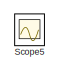
[diagram: root canvas - part 1/5, top left region]
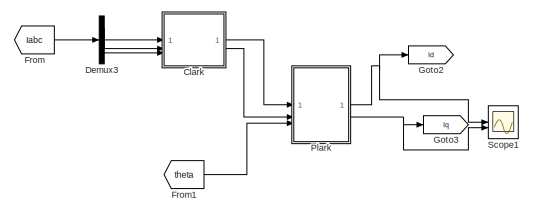
[diagram: root canvas - part 2/5, central region]
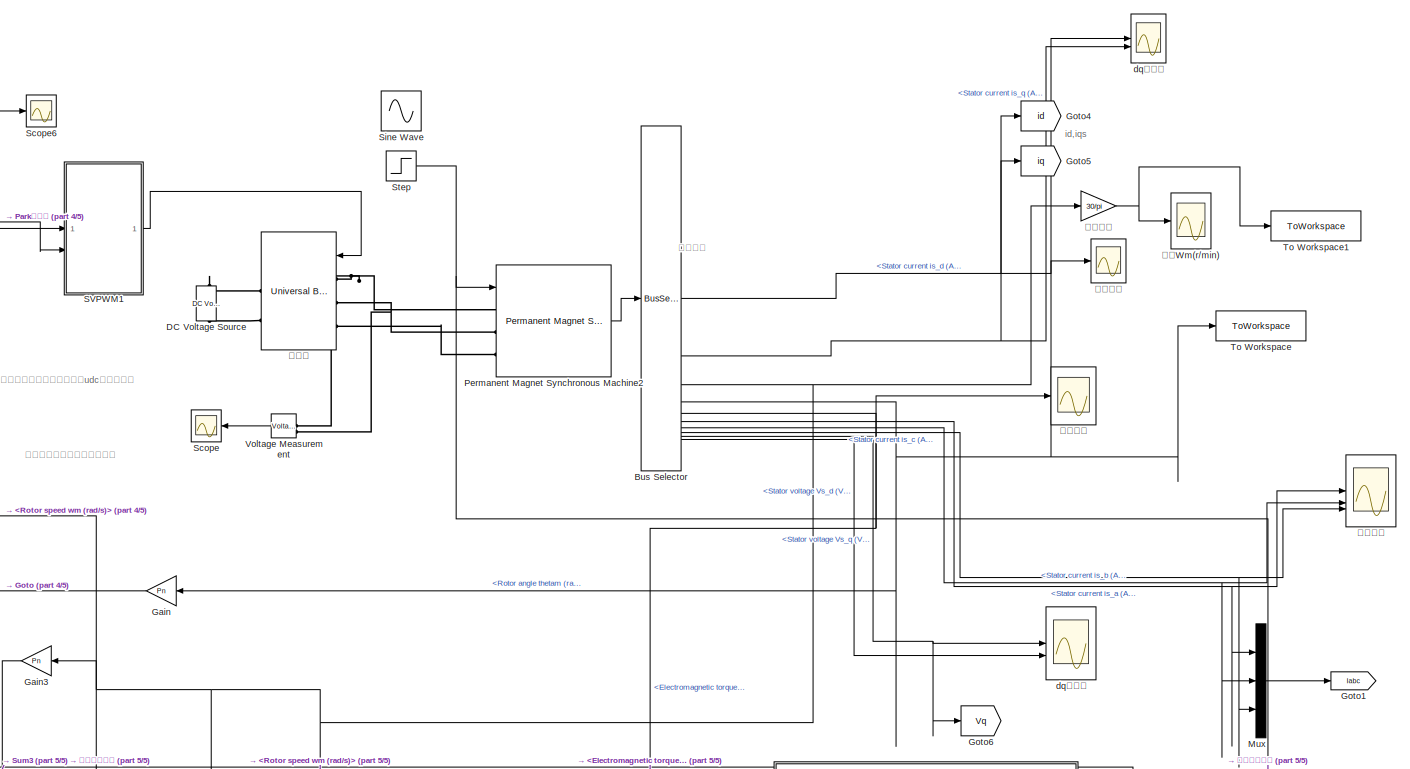
[diagram: root canvas - part 3/5, middle right region]
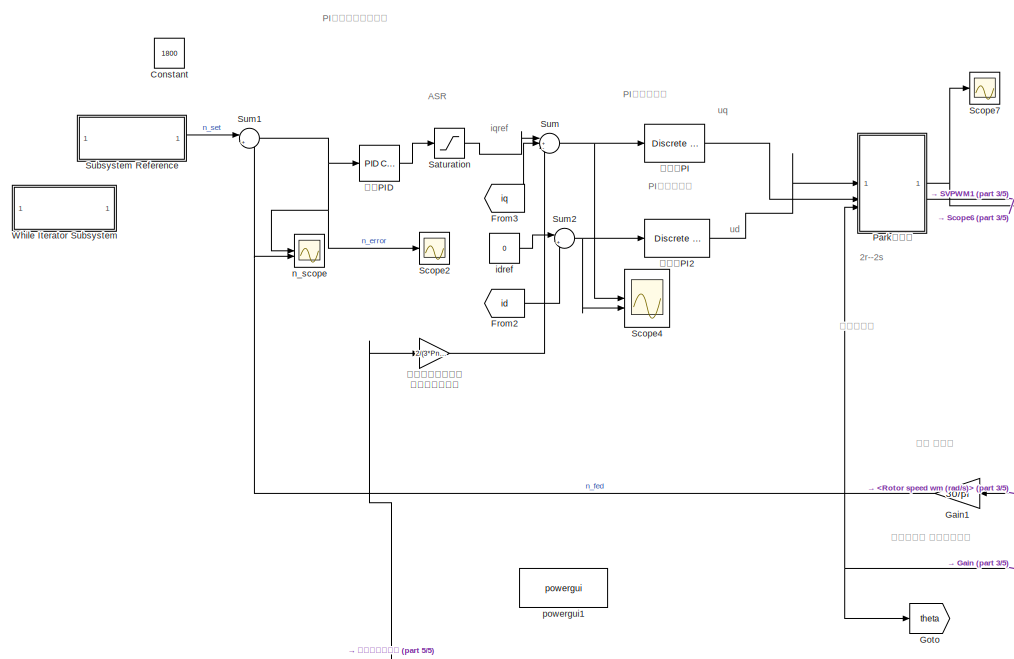
[diagram: root canvas - part 4/5, central region]
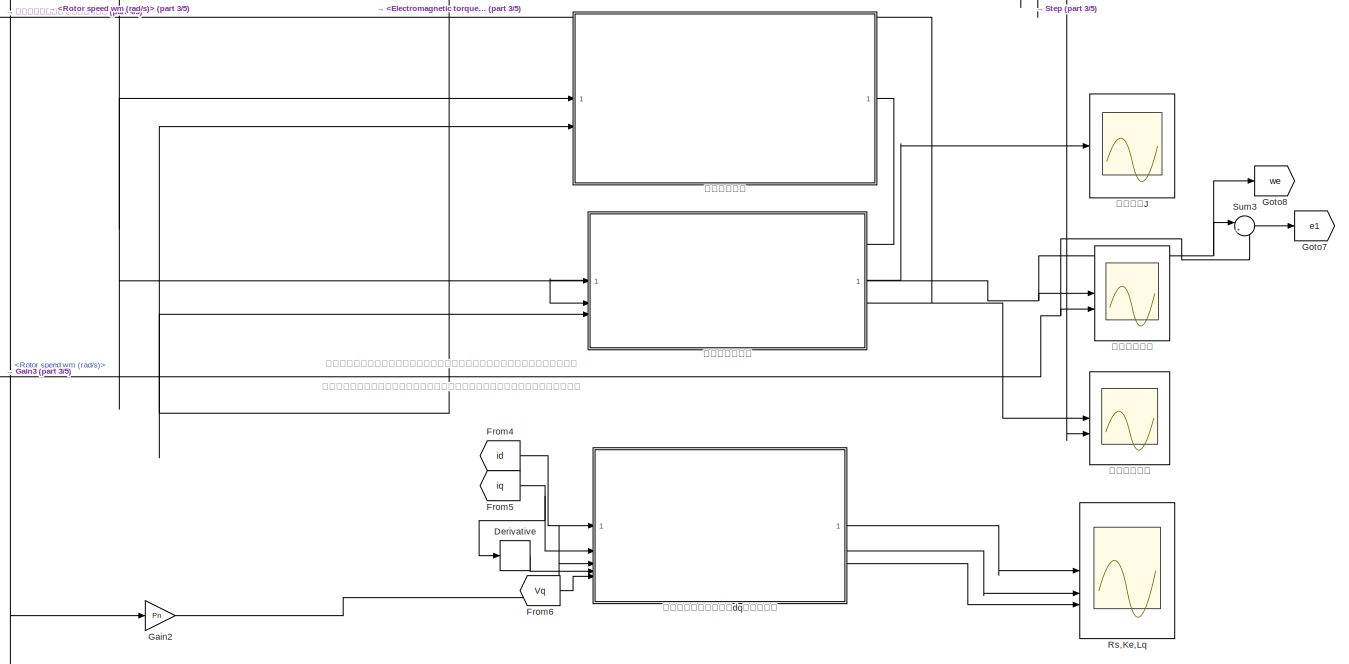
[diagram: root canvas - part 5/5, bottom right region]
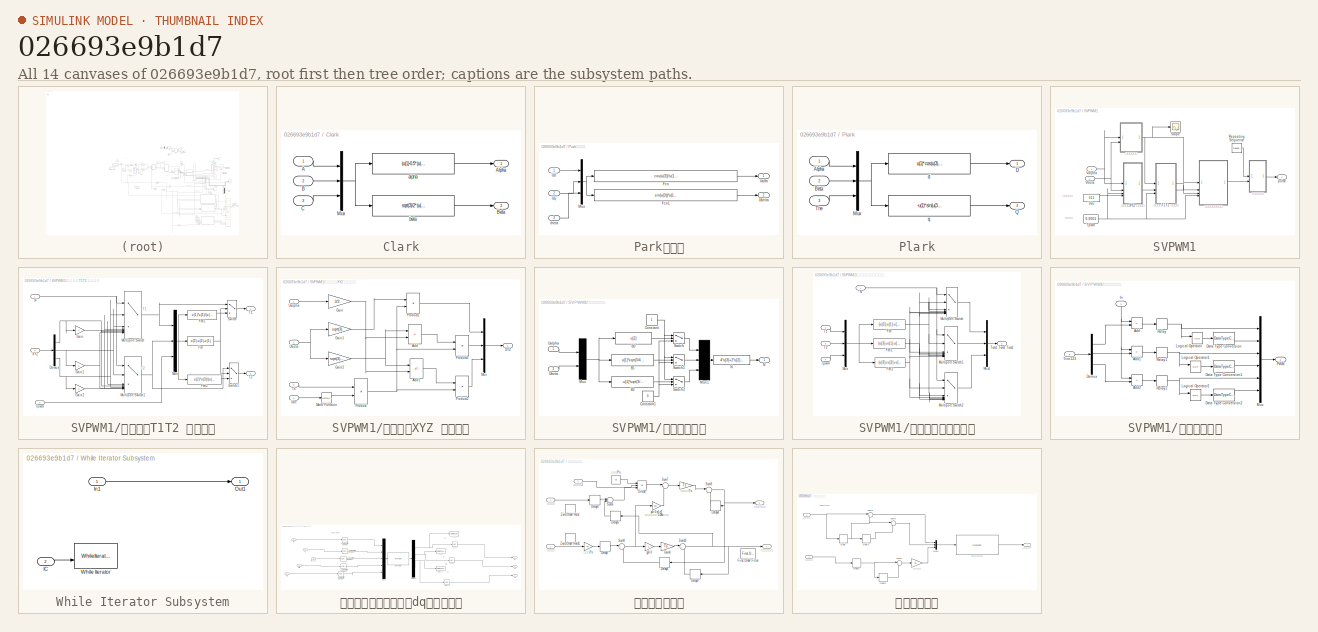
[diagram: thumbnail index - all 14 canvases of the model, root first then tree order]
MODEL slx_026693e9b1d7
KIND model
CONFIG AbsTol = auto
CONFIG EnableMultiTasking = on
CONFIG FixedStep = 2e-5
CONFIG InitFcn = st = 1;\nAmp = 0;\ndt = 0;\nRiseT = 0;\ny = 0;
CONFIG MaxStep = auto
CONFIG MinStep = auto
CONFIG RelTol = 1e-4
CONFIG SampleTimeConstraint = Unconstrained
CONFIG SolverName = ode4
CONFIG StartTime = 0.0
CONFIG StopTime = 4
BLOCK [BusSelector] Bus Selector
  OutputSignals = Stator current is_d (A),Stator current is_q (A),Rotor speed wm (rad/s),Rotor angle thetam (rad),Electromagnetic torque Te (N*m),Stator current is_a (A),Stator current is_b (A),Stator current is_c (A),Stator voltage Vs_q (V),Stator voltage Vs_d (V)
BLOCK [SubSystem] Clark
BLOCK [Inport] Clark/A
BLOCK [Outport] Clark/Alpha
BLOCK [Inport] Clark/B
  Port = 2
BLOCK [Outport] Clark/Beta
  Port = 2
BLOCK [Inport] Clark/C
  Port = 3
BLOCK [Mux] Clark/Mux
  DisplayOption = bar
  Inputs = 3
BLOCK [Fcn] Clark/alpha
  Expr = (u(1)-0.5*(u(2)+u(3)))*2/3
BLOCK [Fcn] Clark/beta
  Expr = sqrt(3)/2*(u(2)-u(3))*2/3
BLOCK [Constant] Constant
  Value = 1800
BLOCK [Reference] DC Voltage Source  REF=spsDCVoltageSourceLib/DC Voltage Source
  LibrarySourceBlock = sps_lib/Sources/DC Voltage Source
  NameLocation = right
  SourceBlock = spsDCVoltageSourceLib/DC Voltage Source
  SourceType = DC Voltage Source
BLOCK [Demux] Demux3
  NameLocation = top
  Outputs = 3
BLOCK [Derivative] Derivative
BLOCK [From] From
  GotoTag = Iabc
  TagVisibility = global
BLOCK [From] From1
  GotoTag = theta
BLOCK [From] From2
  GotoTag = id
BLOCK [From] From3
  GotoTag = iq
BLOCK [From] From4
  GotoTag = id
BLOCK [From] From5
  GotoTag = iq
BLOCK [From] From6
  GotoTag = Vq
BLOCK [Gain] Gain
  Gain = Pn
BLOCK [Gain] Gain1
  Gain = 30/pi
BLOCK [Gain] Gain2
  Gain = Pn
BLOCK [Gain] Gain3
  Gain = Pn
BLOCK [Goto] Goto
  GotoTag = theta
BLOCK [Goto] Goto1
  GotoTag = Iabc
  TagVisibility = global
BLOCK [Goto] Goto2
  GotoTag = Id
  TagVisibility = global
BLOCK [Goto] Goto3
  GotoTag = Iq
  TagVisibility = global
BLOCK [Goto] Goto4
  GotoTag = id
BLOCK [Goto] Goto5
  GotoTag = iq
BLOCK [Goto] Goto6
  GotoTag = Vq
BLOCK [Goto] Goto7
  GotoTag = e1
BLOCK [Goto] Goto8
  GotoTag = we
BLOCK [Mux] Mux
  DisplayOption = bar
  Inputs = 3
BLOCK [SubSystem] Park逆变换
BLOCK [Fcn] Park逆变换/Fcn
  Expr = cos(u(3))*u(1)-sin(u(3))*u(2)
BLOCK [Fcn] Park逆变换/Fcn1
  Expr = sin(u(3))*u(1)+cos(u(3))*u(2)
BLOCK [Mux] Park逆变换/Mux
  DisplayOption = bar
  Inputs = 3
BLOCK [Outport] Park逆变换/Ualfa
BLOCK [Outport] Park逆变换/Ubeita
  Port = 2
BLOCK [Inport] Park逆变换/Ud'
BLOCK [Inport] Park逆变换/Uq'
  Port = 2
BLOCK [Inport] Park逆变换/theta
  Port = 3
BLOCK [Reference] Permanent Magnet Synchronous Machine2  REF=spsPermanentMagnetSynchronousMachineLib/Permanent Magnet
Synchronous Machine
  LibrarySourceBlock = sps_lib/Electrical Machines/Permanent Magnet\nSynchronous Machine
  SourceBlock = spsPermanentMagnetSynchronousMachineLib/Permanent Magnet\nSynchronous Machine
  SourceType = Permanent Magnet Synchronous Machine
BLOCK [SubSystem] Plark
BLOCK [Inport] Plark/Alpha
BLOCK [Inport] Plark/Beta
  Port = 2
BLOCK [Outport] Plark/D
BLOCK [Mux] Plark/Mux
  DisplayOption = bar
  Inputs = 3
BLOCK [Outport] Plark/Q
  Port = 2
BLOCK [Inport] Plark/The
  Port = 3
BLOCK [Fcn] Plark/d
  Expr = u(1)*cos(u(3))+u(2)*sin(u(3))
BLOCK [Fcn] Plark/q
  Expr = -u(1)*sin(u(3))+u(2)*cos(u(3))
BLOCK [Scope] Rs,Ke,Lq
  Floating = off
  NumInputPorts = 3
  ScopeSpecificationString = Simulink.scopes.TimeScopeBlockCfg('CurrentConfiguration', extmgr.ConfigurationSet(extmgr.Configuration('Core','General UI',true,'FigureColor',[1 1 1]),extmgr.Configuration('Core','Source UI',true),extmgr.Configuration('Sources','WiredSimulink',true,'DataLoggingVariableName','ScopeData1'),extmgr.Configuration('Visuals','Time Domain',true,'SerializedDisplays',{struct('MinYLimReal','-0.04423','MaxYLi...<+3018ch>
BLOCK [SubSystem] SVPWM1
BLOCK [Reference] SVPWM1/Repeating Sequence  REF=simulink/Sources/Repeating
Sequence
  SourceBlock = simulink/Sources/Repeating\nSequence
  SourceType = Repeating table
BLOCK [Scope] SVPWM1/Scope
  Floating = off
  NumInputPorts = 1
  ScopeSpecificationString = Simulink.scopes.TimeScopeBlockCfg('CurrentConfiguration', extmgr.ConfigurationSet(extmgr.Configuration('Core','General UI',true),extmgr.Configuration('Core','Source UI',true),extmgr.Configuration('Sources','WiredSimulink',true,'DataLoggingVariableName','ScopeData1'),extmgr.Configuration('Visuals','Time Domain',true,'SerializedDisplays',{struct('MinYLimReal','0.89105','MaxYLimReal','6.07711','YLabe...<+1434ch>
BLOCK [Constant] SVPWM1/Tpwm
  Value = 0.0001
BLOCK [Inport] SVPWM1/Valpha
BLOCK [Inport] SVPWM1/Vbeta
  Port = 2
BLOCK [Constant] SVPWM1/Vdc
  Value = 311
BLOCK [Outport] SVPWM1/pulse
BLOCK [SubSystem] SVPWM1/不同扇区T1T2 计算模型
BLOCK [Demux] SVPWM1/不同扇区T1T2 计算模型/Demux
  Outputs = 3
BLOCK [Fcn] SVPWM1/不同扇区T1T2 计算模型/Fcn
  Expr = u(3)-u(2)-u(1)
BLOCK [Fcn] SVPWM1/不同扇区T1T2 计算模型/Fcn1
  Expr = u(1)*u(3)/(u(1)+u(2))
BLOCK [Fcn] SVPWM1/不同扇区T1T2 计算模型/Fcn2
  Expr = u(2)*u(3)/(u(1)+u(2))
BLOCK [Gain] SVPWM1/不同扇区T1T2 计算模型/Gain
  Gain = -1
BLOCK [Gain] SVPWM1/不同扇区T1T2 计算模型/Gain1
  Gain = -1
BLOCK [Gain] SVPWM1/不同扇区T1T2 计算模型/Gain2
  Gain = -1
BLOCK [MultiPortSwitch] SVPWM1/不同扇区T1T2 计算模型/Multiport Switch
  DiagnosticForDefault = Warning
  InputSameDT = off
  Inputs = 6
  SaturateOnIntegerOverflow = off
BLOCK [MultiPortSwitch] SVPWM1/不同扇区T1T2 计算模型/Multiport Switch1
  DiagnosticForDefault = Warning
  InputSameDT = off
  Inputs = 6
  SaturateOnIntegerOverflow = off
BLOCK [Mux] SVPWM1/不同扇区T1T2 计算模型/Mux
  DisplayOption = bar
  Inputs = 3
BLOCK [Inport] SVPWM1/不同扇区T1T2 计算模型/N
BLOCK [Switch] SVPWM1/不同扇区T1T2 计算模型/Switch
  InputSameDT = off
  SaturateOnIntegerOverflow = off
BLOCK [Switch] SVPWM1/不同扇区T1T2 计算模型/Switch1
  Criteria = u2 > Threshold
  InputSameDT = off
  SaturateOnIntegerOverflow = off
BLOCK [Outport] SVPWM1/不同扇区T1T2 计算模型/T1
BLOCK [Outport] SVPWM1/不同扇区T1T2 计算模型/T2
  Port = 2
BLOCK [Inport] SVPWM1/不同扇区T1T2 计算模型/Tpwm
  Port = 3
BLOCK [Inport] SVPWM1/不同扇区T1T2 计算模型/XYZ
  Port = 2
BLOCK [SubSystem] SVPWM1/不同扇区XYZ 计算模型
BLOCK [Sum] SVPWM1/不同扇区XYZ 计算模型/Add
  IconShape = rectangular
BLOCK [Sum] SVPWM1/不同扇区XYZ 计算模型/Add1
  IconShape = rectangular
  Inputs = +-
BLOCK [Gain] SVPWM1/不同扇区XYZ 计算模型/Gain
  Gain = 3/2
BLOCK [Gain] SVPWM1/不同扇区XYZ 计算模型/Gain1
  Gain = sqrt(3)
BLOCK [Gain] SVPWM1/不同扇区XYZ 计算模型/Gain2
  Gain = sqrt(3)/2
BLOCK [Math] SVPWM1/不同扇区XYZ 计算模型/Math Function
  Operator = reciprocal
  SignedPower = on
BLOCK [Mux] SVPWM1/不同扇区XYZ 计算模型/Mux
  DisplayOption = bar
  Inputs = 3
BLOCK [Product] SVPWM1/不同扇区XYZ 计算模型/Product
  RndMeth = Zero
BLOCK [Product] SVPWM1/不同扇区XYZ 计算模型/Product1
  RndMeth = Zero
BLOCK [Product] SVPWM1/不同扇区XYZ 计算模型/Product2
  RndMeth = Zero
BLOCK [Product] SVPWM1/不同扇区XYZ 计算模型/Product3
  RndMeth = Zero
BLOCK [Inport] SVPWM1/不同扇区XYZ 计算模型/Ts
  Port = 3
BLOCK [Inport] SVPWM1/不同扇区XYZ 计算模型/Ualpha
BLOCK [Inport] SVPWM1/不同扇区XYZ 计算模型/Ubeta
  Port = 2
BLOCK [Inport] SVPWM1/不同扇区XYZ 计算模型/Udc
  Port = 4
BLOCK [Outport] SVPWM1/不同扇区XYZ 计算模型/XYZ
BLOCK [SubSystem] SVPWM1/扇区计算模型
BLOCK [Fcn] SVPWM1/扇区计算模型/B0
  Expr = u[2]
BLOCK [Fcn] SVPWM1/扇区计算模型/B1
  Expr = u[1]*sqrt(3/4)-0.5*u[2]
BLOCK [Fcn] SVPWM1/扇区计算模型/B2
  Expr = -u[1]*sqrt(3/4)-u[2]*0.5
BLOCK [Constant] SVPWM1/扇区计算模型/Constant
BLOCK [Constant] SVPWM1/扇区计算模型/Constant1
  Value = 0
BLOCK [Mux] SVPWM1/扇区计算模型/Mux
  Inputs = 2
BLOCK [Mux] SVPWM1/扇区计算模型/Mux1
  Inputs = 3
BLOCK [Fcn] SVPWM1/扇区计算模型/N
  Expr = 4*u[3]+2*u[2]+u[1]
BLOCK [Outport] SVPWM1/扇区计算模型/N 
BLOCK [Switch] SVPWM1/扇区计算模型/Switch
  InputSameDT = off
  SaturateOnIntegerOverflow = off
BLOCK [Switch] SVPWM1/扇区计算模型/Switch1
  InputSameDT = off
  SaturateOnIntegerOverflow = off
BLOCK [Switch] SVPWM1/扇区计算模型/Switch2
  InputSameDT = off
  SaturateOnIntegerOverflow = off
BLOCK [Inport] SVPWM1/扇区计算模型/Ualpha
BLOCK [Inport] SVPWM1/扇区计算模型/Ubeta
  Port = 2
BLOCK [SubSystem] SVPWM1/空间电压矢量切换点
BLOCK [Fcn] SVPWM1/空间电压矢量切换点/Fcn
  Expr = (u[3]-u[1]-u[2])/4
BLOCK [Fcn] SVPWM1/空间电压矢量切换点/Fcn1
  Expr = (u[3]+u[1]-u[2])/4
BLOCK [Fcn] SVPWM1/空间电压矢量切换点/Fcn2
  Expr = (u[3]+u[2]+u[1])/4
BLOCK [MultiPortSwitch] SVPWM1/空间电压矢量切换点/Multiport Switch
  DiagnosticForDefault = Warning
  InputSameDT = off
  Inputs = 6
  SaturateOnIntegerOverflow = off
BLOCK [MultiPortSwitch] SVPWM1/空间电压矢量切换点/Multiport Switch1
  DiagnosticForDefault = Warning
  InputSameDT = off
  Inputs = 6
  SaturateOnIntegerOverflow = off
BLOCK [MultiPortSwitch] SVPWM1/空间电压矢量切换点/Multiport Switch2
  DiagnosticForDefault = Warning
  InputSameDT = off
  Inputs = 6
  SaturateOnIntegerOverflow = off
BLOCK [Mux] SVPWM1/空间电压矢量切换点/Mux
  DisplayOption = bar
  Inputs = 3
BLOCK [Mux] SVPWM1/空间电压矢量切换点/Mux1
  DisplayOption = bar
  Inputs = 3
BLOCK [Inport] SVPWM1/空间电压矢量切换点/N
BLOCK [Inport] SVPWM1/空间电压矢量切换点/T1
  Port = 2
BLOCK [Inport] SVPWM1/空间电压矢量切换点/T2
  Port = 3
BLOCK [Outport] SVPWM1/空间电压矢量切换点/Tcm1 Tcm2 Tcm3
BLOCK [Inport] SVPWM1/空间电压矢量切换点/Tpwm
  Port = 4
BLOCK [SubSystem] SVPWM1/脉冲输出模型
BLOCK [Sum] SVPWM1/脉冲输出模型/Add
  IconShape = rectangular
  Inputs = +-
BLOCK [Sum] SVPWM1/脉冲输出模型/Add1
  IconShape = rectangular
  Inputs = +-
BLOCK [Sum] SVPWM1/脉冲输出模型/Add2
  IconShape = rectangular
  Inputs = +-
BLOCK [DataTypeConversion] SVPWM1/脉冲输出模型/Data Type Conversion
  OutDataTypeStr = double
  RndMeth = Floor
  SaturateOnIntegerOverflow = off
BLOCK [DataTypeConversion] SVPWM1/脉冲输出模型/Data Type Conversion1
  OutDataTypeStr = double
  RndMeth = Floor
  SaturateOnIntegerOverflow = off
BLOCK [DataTypeConversion] SVPWM1/脉冲输出模型/Data Type Conversion2
  OutDataTypeStr = double
  RndMeth = Floor
  SaturateOnIntegerOverflow = off
BLOCK [Demux] SVPWM1/脉冲输出模型/Demux
  Outputs = 3
BLOCK [Inport] SVPWM1/脉冲输出模型/In
  NameLocation = right
BLOCK [Logic] SVPWM1/脉冲输出模型/Logical Operator
  AllPortsSameDT = off
  Operator = NOT
  OutDataTypeStr = boolean
BLOCK [Logic] SVPWM1/脉冲输出模型/Logical Operator1
  AllPortsSameDT = off
  Operator = NOT
  OutDataTypeStr = boolean
BLOCK [Logic] SVPWM1/脉冲输出模型/Logical Operator2
  AllPortsSameDT = off
  Operator = NOT
  OutDataTypeStr = boolean
BLOCK [Mux] SVPWM1/脉冲输出模型/Mux
  DisplayOption = bar
  Inputs = 6
BLOCK [Outport] SVPWM1/脉冲输出模型/PWM
BLOCK [Relay] SVPWM1/脉冲输出模型/Relay
  OffSwitchValue = -eps
BLOCK [Relay] SVPWM1/脉冲输出模型/Relay1
  OffSwitchValue = -eps
BLOCK [Relay] SVPWM1/脉冲输出模型/Relay2
  OffSwitchValue = -eps
BLOCK [Inport] SVPWM1/脉冲输出模型/Tcm123
  Port = 2
BLOCK [Saturate] Saturation
  LowerLimit = -50
  UpperLimit = 50
BLOCK [Scope] Scope
  Floating = off
  NumInputPorts = 1
  ScopeSpecificationString = Simulink.scopes.TimeScopeBlockCfg('CurrentConfiguration', extmgr.ConfigurationSet(extmgr.Configuration('Core','General UI',true),extmgr.Configuration('Core','Source UI',true),extmgr.Configuration('Sources','WiredSimulink',true,'DataLoggingSaveFormat','Array','DataLoggingDecimation','1','DataLoggingDecimateData',true,'DataLoggingVariableName','ScopeData2'),extmgr.Configuration('Visuals','Time Domai...<+1552ch>
BLOCK [Scope] Scope1
  Floating = off
  NumInputPorts = 2
  ScopeSpecificationString = Simulink.scopes.TimeScopeBlockCfg('CurrentConfiguration', extmgr.ConfigurationSet(extmgr.Configuration('Core','General UI',true),extmgr.Configuration('Core','Source UI',true),extmgr.Configuration('Sources','WiredSimulink',true,'DataLoggingVariableName','ScopeData3'),extmgr.Configuration('Visuals','Time Domain',true,'SerializedDisplays',{struct('MinYLimReal','-3.91087','MaxYLimReal','23.15011','YLa...<+1409ch>
BLOCK [Scope] Scope2
  Floating = off
  NumInputPorts = 1
  ScopeSpecificationString = Simulink.scopes.TimeScopeBlockCfg('CurrentConfiguration', extmgr.ConfigurationSet(extmgr.Configuration('Core','General UI',true),extmgr.Configuration('Core','Source UI',true),extmgr.Configuration('Sources','WiredSimulink',true,'DataLoggingVariableName','ScopeData4'),extmgr.Configuration('Visuals','Time Domain',true,'SerializedDisplays',{struct('MinYLimReal','-7114.18853','MaxYLimReal','2360.13127'...<+1474ch>
BLOCK [Scope] Scope4
  Floating = off
  NumInputPorts = 2
  ScopeSpecificationString = Simulink.scopes.TimeScopeBlockCfg('CurrentConfiguration', extmgr.ConfigurationSet(extmgr.Configuration('Core','General UI',true,'FigureColor',[1 1 1]),extmgr.Configuration('Core','Source UI',true),extmgr.Configuration('Sources','WiredSimulink',true,'DataLoggingVariableName','ScopeData5'),extmgr.Configuration('Visuals','Time Domain',true,'SerializedDisplays',{struct('MinYLimReal','-16.53768','MaxYL...<+2232ch>
BLOCK [Scope] Scope5
  Floating = off
  IOType = viewer
  NumInputPorts = 1
  ScopeSpecificationString = Simulink.scopes.TimeScopeBlockCfg('CurrentConfiguration', extmgr.ConfigurationSet(extmgr.Configuration('Core','General UI',true),extmgr.Configuration('Core','Source UI',true),extmgr.Configuration('Sources','WiredSimulink',true,'DataLoggingVariableName','ScopeData2'),extmgr.Configuration('Visuals','Time Domain',true,'SerializedDisplays',{struct('MinYLimReal','-150.00000','MaxYLimReal','1350.00000',...<+1510ch>
BLOCK [Scope] Scope6
  Floating = off
  NumInputPorts = 1
  ScopeSpecificationString = Simulink.scopes.TimeScopeBlockCfg('CurrentConfiguration', extmgr.ConfigurationSet(extmgr.Configuration('Core','General UI',true),extmgr.Configuration('Core','Source UI',true),extmgr.Configuration('Sources','WiredSimulink',true,'DataLoggingVariableName','ScopeData6'),extmgr.Configuration('Visuals','Time Domain',true,'SerializedDisplays',{struct('MinYLimReal','-258.48521','MaxYLimReal','306.50106','...<+1412ch>
BLOCK [Scope] Scope7
  Floating = off
  NumInputPorts = 1
  ScopeSpecificationString = Simulink.scopes.TimeScopeBlockCfg('CurrentConfiguration', extmgr.ConfigurationSet(extmgr.Configuration('Core','General UI',true),extmgr.Configuration('Core','Source UI',true),extmgr.Configuration('Sources','WiredSimulink',true,'DataLoggingVariableName','ScopeData7'),extmgr.Configuration('Visuals','Time Domain',true,'SerializedDisplays',{struct('MinYLimReal','-309.12492','MaxYLimReal','310.98733','...<+1434ch>
BLOCK [Sin] Sine Wave
  Amplitude = 15
  Frequency = 2
  SampleTime = 0
BLOCK [Step] Step
  After = 10
  Before = 5
  SampleTime = 0
BLOCK [SubSystem] Subsystem Reference
  Amp = 1200
  ReferencedSubsystem = SignalSelector
  RiseT = 0.0005
  dt = 0.5
  st = Ramp
BLOCK [Sum] Sum
  Inputs = |+-+
BLOCK [Sum] Sum1
  Inputs = |+-
BLOCK [Sum] Sum2
  Inputs = |+-
BLOCK [Sum] Sum3
  Inputs = |+-
BLOCK [ToWorkspace] To Workspace
  FixptAsFi = on
  MaxDataPoints = inf
  SampleTime = -1
  SaveFormat = Timeseries
  VariableName = RotorAngel
BLOCK [ToWorkspace] To Workspace1
  FixptAsFi = on
  MaxDataPoints = inf
  SampleTime = -1
  SaveFormat = Timeseries
  VariableName = Wm2
BLOCK [Reference] Voltage Measurement  REF=spsVoltageMeasurementLib/Voltage Measurement
  LibrarySourceBlock = sps_lib/Sensors and Measurements/Voltage Measurement
  SourceBlock = spsVoltageMeasurementLib/Voltage Measurement
  SourceType = Voltage Measurement
  UserDataPersistent = on
BLOCK [SubSystem] While Iterator Subsystem
  TreatAsAtomicUnit = on
BLOCK [Inport] While Iterator Subsystem/IC
  Port = 2
BLOCK [Inport] While Iterator Subsystem/In1
BLOCK [Outport] While Iterator Subsystem/Out1
BLOCK [WhileIterator] While Iterator Subsystem/While Iterator
  MaxIters = -1
BLOCK [Scope] dq轴电压
  Floating = off
  NumInputPorts = 2
  ScopeSpecificationString = Simulink.scopes.TimeScopeBlockCfg('CurrentConfiguration', extmgr.ConfigurationSet(extmgr.Configuration('Core','General UI',true,'FigureColor',[1 1 1]),extmgr.Configuration('Core','Source UI',true),extmgr.Configuration('Sources','WiredSimulink',true,'DataLoggingVariableName','ScopeData8'),extmgr.Configuration('Visuals','Time Domain',true,'SerializedDisplays',{struct('MinYLimReal','-165.49634','MaxY...<+2213ch>
BLOCK [Scope] dq轴电流
  Floating = off
  NumInputPorts = 2
  ScopeSpecificationString = Simulink.scopes.TimeScopeBlockCfg('CurrentConfiguration', extmgr.ConfigurationSet(extmgr.Configuration('Core','General UI',true),extmgr.Configuration('Core','Source UI',true),extmgr.Configuration('Sources','WiredSimulink',true,'DataLoggingVariableName','ScopeData9'),extmgr.Configuration('Visuals','Time Domain',true,'SerializedDisplays',{struct('MinYLimReal','-52.34756','MaxYLimReal','70.70365','YL...<+1492ch>
BLOCK [Constant] idref
  Value = 0
BLOCK [Scope] n_scope
  Floating = off
  NumInputPorts = 2
  ScopeSpecificationString = Simulink.scopes.TimeScopeBlockCfg('CurrentConfiguration', extmgr.ConfigurationSet(extmgr.Configuration('Core','General UI',true,'FigureColor',[1 1 1]),extmgr.Configuration('Core','Source UI',true),extmgr.Configuration('Sources','WiredSimulink',true,'DataLoggingVariableName','ScopeData1'),extmgr.Configuration('Visuals','Time Domain',true,'SerializedDisplays',{struct('MinYLimReal','-7114.18853','Max...<+2397ch>
BLOCK [Reference] powergui1  REF=sps_lib/powergui
  LibrarySourceBlock = sps_lib/powergui
  SourceBlock = sps_lib/powergui
  SourceType = PSB option menu block
BLOCK [Scope] 三相电流
  Floating = off
  NumInputPorts = 3
  ScopeSpecificationString = Simulink.scopes.TimeScopeBlockCfg('CurrentConfiguration', extmgr.ConfigurationSet(extmgr.Configuration('Core','General UI',true),extmgr.Configuration('Core','Source UI',true),extmgr.Configuration('Sources','WiredSimulink',true,'DataLoggingVariableName','ScopeData10'),extmgr.Configuration('Visuals','Time Domain',true,'SerializedDisplays',{struct('MinYLimReal','-41.01274','MaxYLimReal','49.82082','Y...<+1500ch>
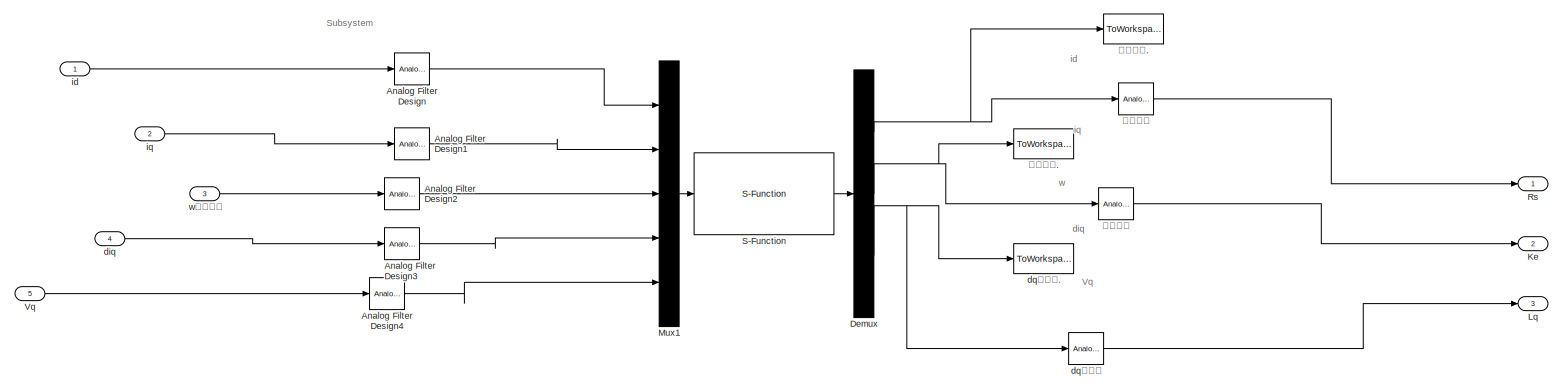
[diagram: 定子电阻，永磁磁链，dq轴电感辨识 - part 1/1, most of the canvas]
BLOCK [SubSystem] 定子电阻，永磁磁链，dq轴电感辨识
BLOCK [Reference] 定子电阻，永磁磁链，dq轴电感辨识/Analog Filter Design  REF=dspfdesign/Analog
Filter Design
  SourceBlock = dspfdesign/Analog\nFilter Design
  SourceType = Analog Filter Design
BLOCK [Reference] 定子电阻，永磁磁链，dq轴电感辨识/Analog Filter Design1  REF=dspfdesign/Analog
Filter Design
  NameLocation = top
  SourceBlock = dspfdesign/Analog\nFilter Design
  SourceType = Analog Filter Design
BLOCK [Reference] 定子电阻，永磁磁链，dq轴电感辨识/Analog Filter Design2  REF=dspfdesign/Analog
Filter Design
  SourceBlock = dspfdesign/Analog\nFilter Design
  SourceType = Analog Filter Design
BLOCK [Reference] 定子电阻，永磁磁链，dq轴电感辨识/Analog Filter Design3  REF=dspfdesign/Analog
Filter Design
  SourceBlock = dspfdesign/Analog\nFilter Design
  SourceType = Analog Filter Design
BLOCK [Reference] 定子电阻，永磁磁链，dq轴电感辨识/Analog Filter Design4  REF=dspfdesign/Analog
Filter Design
  SourceBlock = dspfdesign/Analog\nFilter Design
  SourceType = Analog Filter Design
BLOCK [Demux] 定子电阻，永磁磁链，dq轴电感辨识/Demux
  Outputs = 3
BLOCK [Outport] 定子电阻，永磁磁链，dq轴电感辨识/Ke
  Port = 2
BLOCK [Outport] 定子电阻，永磁磁链，dq轴电感辨识/Lq
  Port = 3
BLOCK [Mux] 定子电阻，永磁磁链，dq轴电感辨识/Mux1
  DisplayOption = bar
  Inputs = 5
BLOCK [Outport] 定子电阻，永磁磁链，dq轴电感辨识/Rs
BLOCK [S-Function] 定子电阻，永磁磁链，dq轴电感辨识/S-Function
  EnableBusSupport = off
  FunctionName = Synchronous_demarcate
  SFcnIsStateOwnerBlock = off
  SFunctionDeploymentMode = off
BLOCK [Inport] 定子电阻，永磁磁链，dq轴电感辨识/Vq
  Port = 5
BLOCK [Inport] 定子电阻，永磁磁链，dq轴电感辨识/diq
  Port = 4
BLOCK [Reference] 定子电阻，永磁磁链，dq轴电感辨识/dq轴电感  REF=dspfdesign/Analog
Filter Design
  SourceBlock = dspfdesign/Analog\nFilter Design
  SourceType = Analog Filter Design
BLOCK [ToWorkspace] 定子电阻，永磁磁链，dq轴电感辨识/dq轴电感.
  FixptAsFi = on
  MaxDataPoints = inf
  SampleTime = -1
  SaveFormat = Timeseries
  VariableName = L
BLOCK [Inport] 定子电阻，永磁磁链，dq轴电感辨识/id
BLOCK [Inport] 定子电阻，永磁磁链，dq轴电感辨识/iq
  Port = 2
BLOCK [Inport] 定子电阻，永磁磁链，dq轴电感辨识/w电角速度
  Port = 3
BLOCK [Reference] 定子电阻，永磁磁链，dq轴电感辨识/定子电阻  REF=dspfdesign/Analog
Filter Design
  SourceBlock = dspfdesign/Analog\nFilter Design
  SourceType = Analog Filter Design
BLOCK [ToWorkspace] 定子电阻，永磁磁链，dq轴电感辨识/定子电阻.
  FixptAsFi = on
  MaxDataPoints = inf
  SampleTime = -1
  SaveFormat = Timeseries
  VariableName = R
BLOCK [Reference] 定子电阻，永磁磁链，dq轴电感辨识/永磁磁链  REF=dspfdesign/Analog
Filter Design
  SourceBlock = dspfdesign/Analog\nFilter Design
  SourceType = Analog Filter Design
BLOCK [ToWorkspace] 定子电阻，永磁磁链，dq轴电感辨识/永磁磁链.
  FixptAsFi = on
  MaxDataPoints = inf
  SampleTime = -1
  SaveFormat = Timeseries
  VariableName = Ke
BLOCK [Scope] 机械角度
  Floating = off
  NumInputPorts = 1
  ScopeSpecificationString = Simulink.scopes.TimeScopeBlockCfg('CurrentConfiguration', extmgr.ConfigurationSet(extmgr.Configuration('Core','General UI',true,'FigureColor',[1 1 1]),extmgr.Configuration('Core','Source UI',true),extmgr.Configuration('Sources','WiredSimulink',true,'DataLoggingVariableName','ScopeData11','DataLoggingSaveFormat','Array','DataLoggingDecimation','1','DataLoggingDecimateData',true),extmgr.Configuratio...<+1692ch>
BLOCK [Gain] 电机转速
  Gain = 30/pi
BLOCK [Reference] 电流环PI  REF=powerlib_extras/Discrete 
Control Blocks/Discrete
PI Controller
  SourceBlock = powerlib_extras/Discrete \nControl Blocks/Discrete\nPI Controller
  SourceType = Discrete PI Controller
BLOCK [Reference] 电流环PI2  REF=powerlib_extras/Discrete 
Control Blocks/Discrete
PI Controller
  SourceBlock = powerlib_extras/Discrete \nControl Blocks/Discrete\nPI Controller
  SourceType = Discrete PI Controller
BLOCK [Scope] 电磁转矩
  Floating = off
  NumInputPorts = 1
  ScopeSpecificationString = Simulink.scopes.TimeScopeBlockCfg('CurrentConfiguration', extmgr.ConfigurationSet(extmgr.Configuration('Core','General UI',true,'FigureColor',[1 1 1]),extmgr.Configuration('Core','Source UI',true),extmgr.Configuration('Sources','WiredSimulink',true,'DataLoggingVariableName','ScopeData12'),extmgr.Configuration('Visuals','Time Domain',true,'SerializedDisplays',{struct('MinYLimReal','-22.40005','MaxY...<+1740ch>
BLOCK [Scope] 电角速度观测
  Floating = off
  NumInputPorts = 2
  ScopeSpecificationString = Simulink.scopes.TimeScopeBlockCfg('CurrentConfiguration', extmgr.ConfigurationSet(extmgr.Configuration('Core','General UI',true,'FigureColor',[1 1 1]),extmgr.Configuration('Core','Source UI',true),extmgr.Configuration('Sources','WiredSimulink',true,'DataLoggingVariableName','ScopeData13'),extmgr.Configuration('Visuals','Time Domain',true,'SerializedDisplays',{struct('MinYLimReal','-136.72812','Max...<+1600ch>
BLOCK [Gain] 负载力矩前馈补偿 用到了永磁磁链
  Gain = 2/(3*Pn*0.0714394)
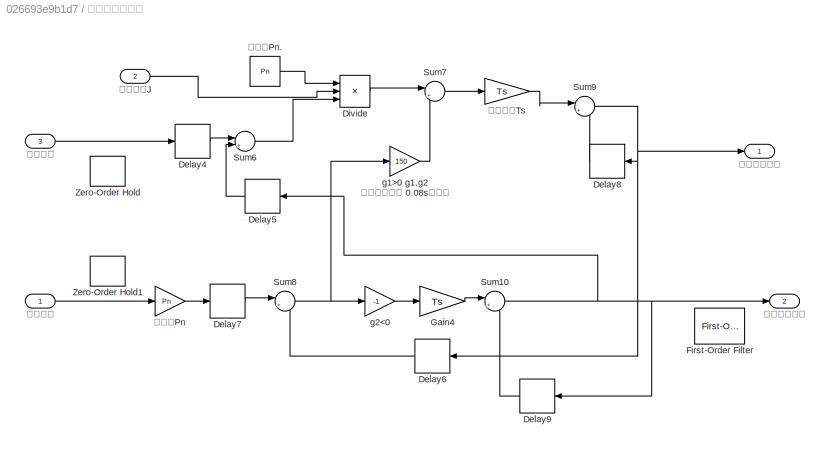
BLOCK [SubSystem] 负载力矩观测器
BLOCK [Delay] 负载力矩观测器/Delay4
  DelayLength = 1
  InitialCondition = 0
  InputPortMap = u0
BLOCK [Delay] 负载力矩观测器/Delay5
  DelayLength = 1
  InitialCondition = 0
  InputPortMap = u0
BLOCK [Delay] 负载力矩观测器/Delay6
  DelayLength = 1
  InitialCondition = 0
  InputPortMap = u0
BLOCK [Delay] 负载力矩观测器/Delay7
  DelayLength = 1
  InitialCondition = 0
  InputPortMap = u0
BLOCK [Delay] 负载力矩观测器/Delay8
  DelayLength = 1
  InitialCondition = 0
  InputPortMap = u0
BLOCK [Delay] 负载力矩观测器/Delay9
  DelayLength = 1
  InitialCondition = 0
  InputPortMap = u0
BLOCK [Product] 负载力矩观测器/Divide
  Inputs = */*
BLOCK [Reference] 负载力矩观测器/First-Order Filter  REF=spsFirstOrderFilterLib/First-Order
Filter
  Commented = on
  LibrarySourceBlock = sps_lib/Control/Filters/First-Order\nFilter
  SourceBlock = spsFirstOrderFilterLib/First-Order\nFilter
  SourceType = First-Order Filter
BLOCK [Gain] 负载力矩观测器/Gain4
  Gain = Ts
BLOCK [Sum] 负载力矩观测器/Sum10
  Inputs = |++
BLOCK [Sum] 负载力矩观测器/Sum6
  Inputs = |+-
BLOCK [Sum] 负载力矩观测器/Sum7
  Inputs = |++
BLOCK [Sum] 负载力矩观测器/Sum8
  Inputs = |+-
BLOCK [Sum] 负载力矩观测器/Sum9
  Inputs = |++
BLOCK [ZeroOrderHold] 负载力矩观测器/Zero-Order Hold
  Commented = on
  SampleTime = -1
BLOCK [ZeroOrderHold] 负载力矩观测器/Zero-Order Hold1
  Commented = on
  SampleTime = -1
BLOCK [Gain] 负载力矩观测器/g1>0 g1,g2 已为最佳参数 0.08s跟踪上
  Gain = 150
BLOCK [Gain] 负载力矩观测器/g2<0
  Gain = -1
BLOCK [Gain] 负载力矩观测器/极对数Pn
  Gain = Pn
BLOCK [Constant] 负载力矩观测器/极对数Pn.
  Value = Pn
BLOCK [Inport] 负载力矩观测器/电磁力矩
  Port = 3
BLOCK [Outport] 负载力矩观测器/电角速度观测
BLOCK [Outport] 负载力矩观测器/负载力矩观测
  Port = 2
BLOCK [Inport] 负载力矩观测器/转动惯量J
  Port = 2
BLOCK [Inport] 负载力矩观测器/转子速度
BLOCK [Gain] 负载力矩观测器/采样时间Ts
  Gain = Ts
BLOCK [Scope] 负载转矩观测
  Floating = off
  NumInputPorts = 2
  ScopeSpecificationString = Simulink.scopes.TimeScopeBlockCfg('CurrentConfiguration', extmgr.ConfigurationSet(extmgr.Configuration('Core','General UI',true,'FigureColor',[1 1 1]),extmgr.Configuration('Core','Source UI',true),extmgr.Configuration('Sources','WiredSimulink',true,'DataLoggingVariableName','ScopeData14'),extmgr.Configuration('Visuals','Time Domain',true,'SerializedDisplays',{struct('MinYLimReal','-1.25725','MaxYL...<+1586ch>
BLOCK [Scope] 转动惯量J
  Floating = off
  NumInputPorts = 1
  ScopeSpecificationString = Simulink.scopes.TimeScopeBlockCfg('CurrentConfiguration', extmgr.ConfigurationSet(extmgr.Configuration('Core','General UI',true,'FigureColor',[1 1 1]),extmgr.Configuration('Core','Source UI',true),extmgr.Configuration('Sources','WiredSimulink',true,'DataLoggingVariableName','ScopeData15'),extmgr.Configuration('Visuals','Time Domain',true,'SerializedDisplays',{struct('MinYLimReal','-0.00008','MaxYL...<+1548ch>
BLOCK [SubSystem] 转动惯量辨识
BLOCK [Delay] 转动惯量辨识/Delay
  DelayLength = 1
  InitialCondition = 0
  InputPortMap = u0
BLOCK [Delay] 转动惯量辨识/Delay1
  DelayLength = 1
  InitialCondition = 0
  InputPortMap = u0
BLOCK [Delay] 转动惯量辨识/Delay2
  DelayLength = 1
  InitialCondition = 0
  InputPortMap = u0
BLOCK [Delay] 转动惯量辨识/Delay3
  DelayLength = 1
  InitialCondition = 0
  InputPortMap = u0
BLOCK [Mux] 转动惯量辨识/Mux1
  DisplayOption = bar
  Inputs = 3
BLOCK [Sum] 转动惯量辨识/Sum3
  Inputs = |+-
BLOCK [Sum] 转动惯量辨识/Sum4
  Inputs = |+-
BLOCK [Sum] 转动惯量辨识/Sum5
  Inputs = |+-
BLOCK [Inport] 转动惯量辨识/电磁力矩
  Port = 2
BLOCK [Outport] 转动惯量辨识/转动惯量
BLOCK [S-Function] 转动惯量辨识/转动惯量辨识
  EnableBusSupport = off
  FunctionName = Synchronous_demarcate2
  SFcnIsStateOwnerBlock = off
  SFunctionDeploymentMode = off
BLOCK [Inport] 转动惯量辨识/转子速度
BLOCK [Gain] 转动惯量辨识/采样时间
  Gain = Ts
BLOCK [Reference] 转速PID  REF=slpidlib/PID Controller
  SourceBlock = slpidlib/PID Controller
  SourceType = PID 1dof
BLOCK [Scope] 转速Wm(r//min)
  Floating = off
  NumInputPorts = 1
  ScopeSpecificationString = Simulink.scopes.TimeScopeBlockCfg('CurrentConfiguration', extmgr.ConfigurationSet(extmgr.Configuration('Core','General UI',true,'FigureColor',[1 1 1]),extmgr.Configuration('Core','Source UI',true),extmgr.Configuration('Sources','WiredSimulink',true,'DataLoggingVariableName','ScopeData16'),extmgr.Configuration('Visuals','Time Domain',true,'SerializedDisplays',{struct('MinYLimReal','-2195.63952','Ma...<+1591ch>
BLOCK [Reference] 逆变器  REF=spsUniversalBridgeLib/Universal Bridge
  LibrarySourceBlock = sps_lib/Power Electronics/Universal Bridge
  SourceBlock = spsUniversalBridgeLib/Universal Bridge
  SourceType = Universal Bridge
ANNOTATION (root): 负载转矩观测器无论是对静态的负载变化还是动态的负载变化都有很好的观测效果 一方面可以较好的跟踪负载转矩的变化，另一方面可以作为前馈减小电机转速的波动
ANNOTATION (root): 2r--2s
ANNOTATION (root): 机械角度
ANNOTATION (root): PI调节器见说明文档
ANNOTATION (root): ud
ANNOTATION (root): PI电流调节器
ANNOTATION (root): id,iqs
ANNOTATION (root): 乘以极对数 转化为电角度
ANNOTATION (root): 稳定后的频率与给定电压频率
ANNOTATION (root): 转速 转每分
ANNOTATION (root): 逆变器输出线电压应该等于udc直流测电压
ANNOTATION (root): uq
ANNOTATION (root): ASR
ANNOTATION (root): iqref
ANNOTATION (root): 转子电角度
ANNOTATION SVPWM1: 直流侧电压
ANNOTATION SVPWM1: 采样时间
ANNOTATION SVPWM1/不同扇区T1T2 计算模型: T1
ANNOTATION SVPWM1/不同扇区T1T2 计算模型: T2
ANNOTATION 定子电阻，永磁磁链，dq轴电感辨识: Subsystem
ANNOTATION 定子电阻，永磁磁链，dq轴电感辨识: Vq
ANNOTATION 定子电阻，永磁磁链，dq轴电感辨识: diq
ANNOTATION 定子电阻，永磁磁链，dq轴电感辨识: id
ANNOTATION 定子电阻，永磁磁链，dq轴电感辨识: iq
ANNOTATION 定子电阻，永磁磁链，dq轴电感辨识: w
ANNOTATION 转动惯量辨识: Subsystem
NET Bus Selector:1 -> Goto4:1, dq轴电流:1
LINE Bus Selector:10 -> dq轴电压:2
NET Bus Selector:2 -> Goto5:1, dq轴电流:2
NET Bus Selector:3 -> Gain1:1, Gain2:1, Gain3:1, 电机转速:1, 负载力矩观测器:1, 转动惯量辨识:1
NET Bus Selector:4 -> Gain:1, To Workspace:1, 机械角度:1
NET Bus Selector:5 -> 电磁转矩:1, 负载力矩观测器:3, 转动惯量辨识:2
NET Bus Selector:6 -> Mux:1, 三相电流:1
NET Bus Selector:7 -> Mux:2, 三相电流:2
NET Bus Selector:8 -> Mux:3, 三相电流:3
NET Bus Selector:9 -> Goto6:1, dq轴电压:1
LINE Clark/A:1 -> Clark/Mux:1
LINE Clark/B:1 -> Clark/Mux:2
LINE Clark/C:1 -> Clark/Mux:3
NET Clark/Mux:1 -> Clark/alpha:1, Clark/beta:1
LINE Clark/alpha:1 -> Clark/Alpha:1
LINE Clark/beta:1 -> Clark/Beta:1
LINE Clark:1 -> Plark:1
LINE Clark:2 -> Plark:2
LINE Demux3:1 -> Clark:1
LINE Demux3:2 -> Clark:2
LINE Demux3:3 -> Clark:3
LINE Derivative:1 -> 定子电阻，永磁磁链，dq轴电感辨识:4
LINE From1:1 -> Plark:3
LINE From2:1 -> Sum2:2
LINE From3:1 -> Sum:2
LINE From4:1 -> 定子电阻，永磁磁链，dq轴电感辨识:1
NET From5:1 -> Derivative:1, 定子电阻，永磁磁链，dq轴电感辨识:2
LINE From6:1 -> 定子电阻，永磁磁链，dq轴电感辨识:5
LINE From:1 -> Demux3:1
NET Gain1:1 -> Sum1:2, n_scope:2
LINE Gain2:1 -> 定子电阻，永磁磁链，dq轴电感辨识:3
NET Gain3:1 -> Sum3:2, 电角速度观测:2
NET Gain:1 -> Goto:1, Park逆变换:3
LINE Mux:1 -> Goto1:1
LINE Park逆变换/Fcn1:1 -> Park逆变换/Ubeita:1
LINE Park逆变换/Fcn:1 -> Park逆变换/Ualfa:1
NET Park逆变换/Mux:1 -> Park逆变换/Fcn1:1, Park逆变换/Fcn:1
LINE Park逆变换/Ud':1 -> Park逆变换/Mux:1
LINE Park逆变换/Uq':1 -> Park逆变换/Mux:2
LINE Park逆变换/theta:1 -> Park逆变换/Mux:3
NET Park逆变换:1 -> SVPWM1:1, Scope7:1
NET Park逆变换:2 -> SVPWM1:2, Scope6:1
LINE Permanent Magnet Synchronous Machine2:1 -> Bus Selector:1
LINE Plark/Alpha:1 -> Plark/Mux:1
LINE Plark/Beta:1 -> Plark/Mux:2
NET Plark/Mux:1 -> Plark/d:1, Plark/q:1
LINE Plark/The:1 -> Plark/Mux:3
LINE Plark/d:1 -> Plark/D:1
LINE Plark/q:1 -> Plark/Q:1
NET Plark:1 -> Goto2:1, Scope1:1
NET Plark:2 -> Goto3:1, Scope1:2
LINE SVPWM1/Repeating Sequence:1 -> SVPWM1/脉冲输出模型:1
NET SVPWM1/Tpwm:1 -> SVPWM1/不同扇区T1T2 计算模型:3, SVPWM1/不同扇区XYZ 计算模型:3, SVPWM1/空间电压矢量切换点:4
NET SVPWM1/Valpha:1 -> SVPWM1/不同扇区XYZ 计算模型:1, SVPWM1/扇区计算模型:1
NET SVPWM1/Vbeta:1 -> SVPWM1/不同扇区XYZ 计算模型:2, SVPWM1/扇区计算模型:2
LINE SVPWM1/Vdc:1 -> SVPWM1/不同扇区XYZ 计算模型:4
NET SVPWM1/不同扇区T1T2 计算模型/Demux:1 -> SVPWM1/不同扇区T1T2 计算模型/Gain:1, SVPWM1/不同扇区T1T2 计算模型/Multiport Switch1:4, SVPWM1/不同扇区T1T2 计算模型/Multiport Switch:6
NET SVPWM1/不同扇区T1T2 计算模型/Demux:2 -> SVPWM1/不同扇区T1T2 计算模型/Gain1:1, SVPWM1/不同扇区T1T2 计算模型/Multiport Switch1:2, SVPWM1/不同扇区T1T2 计算模型/Multiport Switch:3
NET SVPWM1/不同扇区T1T2 计算模型/Demux:3 -> SVPWM1/不同扇区T1T2 计算模型/Gain2:1, SVPWM1/不同扇区T1T2 计算模型/Multiport Switch1:5, SVPWM1/不同扇区T1T2 计算模型/Multiport Switch:2
LINE SVPWM1/不同扇区T1T2 计算模型/Fcn1:1 -> SVPWM1/不同扇区T1T2 计算模型/Switch:3
LINE SVPWM1/不同扇区T1T2 计算模型/Fcn2:1 -> SVPWM1/不同扇区T1T2 计算模型/Switch1:3
NET SVPWM1/不同扇区T1T2 计算模型/Fcn:1 -> SVPWM1/不同扇区T1T2 计算模型/Switch1:2, SVPWM1/不同扇区T1T2 计算模型/Switch:2
NET SVPWM1/不同扇区T1T2 计算模型/Gain1:1 -> SVPWM1/不同扇区T1T2 计算模型/Multiport Switch1:6, SVPWM1/不同扇区T1T2 计算模型/Multiport Switch:7
NET SVPWM1/不同扇区T1T2 计算模型/Gain2:1 -> SVPWM1/不同扇区T1T2 计算模型/Multiport Switch1:7, SVPWM1/不同扇区T1T2 计算模型/Multiport Switch:4
NET SVPWM1/不同扇区T1T2 计算模型/Gain:1 -> SVPWM1/不同扇区T1T2 计算模型/Multiport Switch1:3, SVPWM1/不同扇区T1T2 计算模型/Multiport Switch:5
NET SVPWM1/不同扇区T1T2 计算模型/Multiport Switch1:1 -> SVPWM1/不同扇区T1T2 计算模型/Mux:2, SVPWM1/不同扇区T1T2 计算模型/Switch1:1
NET SVPWM1/不同扇区T1T2 计算模型/Multiport Switch:1 -> SVPWM1/不同扇区T1T2 计算模型/Mux:1, SVPWM1/不同扇区T1T2 计算模型/Switch:1
NET SVPWM1/不同扇区T1T2 计算模型/Mux:1 -> SVPWM1/不同扇区T1T2 计算模型/Fcn1:1, SVPWM1/不同扇区T1T2 计算模型/Fcn2:1, SVPWM1/不同扇区T1T2 计算模型/Fcn:1
NET SVPWM1/不同扇区T1T2 计算模型/N:1 -> SVPWM1/不同扇区T1T2 计算模型/Multiport Switch1:1, SVPWM1/不同扇区T1T2 计算模型/Multiport Switch:1
LINE SVPWM1/不同扇区T1T2 计算模型/Switch1:1 -> SVPWM1/不同扇区T1T2 计算模型/T2:1
LINE SVPWM1/不同扇区T1T2 计算模型/Switch:1 -> SVPWM1/不同扇区T1T2 计算模型/T1:1
LINE SVPWM1/不同扇区T1T2 计算模型/Tpwm:1 -> SVPWM1/不同扇区T1T2 计算模型/Mux:3
LINE SVPWM1/不同扇区T1T2 计算模型/XYZ:1 -> SVPWM1/不同扇区T1T2 计算模型/Demux:1
LINE SVPWM1/不同扇区T1T2 计算模型:1 -> SVPWM1/空间电压矢量切换点:2
LINE SVPWM1/不同扇区T1T2 计算模型:2 -> SVPWM1/空间电压矢量切换点:3
LINE SVPWM1/不同扇区XYZ 计算模型/Add1:1 -> SVPWM1/不同扇区XYZ 计算模型/Product2:1
LINE SVPWM1/不同扇区XYZ 计算模型/Add:1 -> SVPWM1/不同扇区XYZ 计算模型/Product3:1
LINE SVPWM1/不同扇区XYZ 计算模型/Gain1:1 -> SVPWM1/不同扇区XYZ 计算模型/Product1:1
NET SVPWM1/不同扇区XYZ 计算模型/Gain2:1 -> SVPWM1/不同扇区XYZ 计算模型/Add1:1, SVPWM1/不同扇区XYZ 计算模型/Add:1
NET SVPWM1/不同扇区XYZ 计算模型/Gain:1 -> SVPWM1/不同扇区XYZ 计算模型/Add1:2, SVPWM1/不同扇区XYZ 计算模型/Add:2
LINE SVPWM1/不同扇区XYZ 计算模型/Math Function:1 -> SVPWM1/不同扇区XYZ 计算模型/Product:2
LINE SVPWM1/不同扇区XYZ 计算模型/Mux:1 -> SVPWM1/不同扇区XYZ 计算模型/XYZ:1
LINE SVPWM1/不同扇区XYZ 计算模型/Product1:1 -> SVPWM1/不同扇区XYZ 计算模型/Mux:1
LINE SVPWM1/不同扇区XYZ 计算模型/Product2:1 -> SVPWM1/不同扇区XYZ 计算模型/Mux:3
LINE SVPWM1/不同扇区XYZ 计算模型/Product3:1 -> SVPWM1/不同扇区XYZ 计算模型/Mux:2
NET SVPWM1/不同扇区XYZ 计算模型/Product:1 -> SVPWM1/不同扇区XYZ 计算模型/Product1:2, SVPWM1/不同扇区XYZ 计算模型/Product2:2, SVPWM1/不同扇区XYZ 计算模型/Product3:2
LINE SVPWM1/不同扇区XYZ 计算模型/Ts:1 -> SVPWM1/不同扇区XYZ 计算模型/Product:1
LINE SVPWM1/不同扇区XYZ 计算模型/Ualpha:1 -> SVPWM1/不同扇区XYZ 计算模型/Gain:1
NET SVPWM1/不同扇区XYZ 计算模型/Ubeta:1 -> SVPWM1/不同扇区XYZ 计算模型/Gain1:1, SVPWM1/不同扇区XYZ 计算模型/Gain2:1
LINE SVPWM1/不同扇区XYZ 计算模型/Udc:1 -> SVPWM1/不同扇区XYZ 计算模型/Math Function:1
LINE SVPWM1/不同扇区XYZ 计算模型:1 -> SVPWM1/不同扇区T1T2 计算模型:2
LINE SVPWM1/扇区计算模型/B0:1 -> SVPWM1/扇区计算模型/Switch:2
LINE SVPWM1/扇区计算模型/B1:1 -> SVPWM1/扇区计算模型/Switch1:2
LINE SVPWM1/扇区计算模型/B2:1 -> SVPWM1/扇区计算模型/Switch2:2
NET SVPWM1/扇区计算模型/Constant1:1 -> SVPWM1/扇区计算模型/Switch1:3, SVPWM1/扇区计算模型/Switch2:3, SVPWM1/扇区计算模型/Switch:3
NET SVPWM1/扇区计算模型/Constant:1 -> SVPWM1/扇区计算模型/Switch1:1, SVPWM1/扇区计算模型/Switch2:1, SVPWM1/扇区计算模型/Switch:1
LINE SVPWM1/扇区计算模型/Mux1:1 -> SVPWM1/扇区计算模型/N:1
NET SVPWM1/扇区计算模型/Mux:1 -> SVPWM1/扇区计算模型/B0:1, SVPWM1/扇区计算模型/B1:1, SVPWM1/扇区计算模型/B2:1
LINE SVPWM1/扇区计算模型/N:1 -> SVPWM1/扇区计算模型/N :1
LINE SVPWM1/扇区计算模型/Switch1:1 -> SVPWM1/扇区计算模型/Mux1:2
LINE SVPWM1/扇区计算模型/Switch2:1 -> SVPWM1/扇区计算模型/Mux1:3
LINE SVPWM1/扇区计算模型/Switch:1 -> SVPWM1/扇区计算模型/Mux1:1
LINE SVPWM1/扇区计算模型/Ualpha:1 -> SVPWM1/扇区计算模型/Mux:1
LINE SVPWM1/扇区计算模型/Ubeta:1 -> SVPWM1/扇区计算模型/Mux:2
NET SVPWM1/扇区计算模型:1 -> SVPWM1/Scope:1, SVPWM1/不同扇区T1T2 计算模型:1, SVPWM1/空间电压矢量切换点:1
NET SVPWM1/空间电压矢量切换点/Fcn1:1 -> SVPWM1/空间电压矢量切换点/Multiport Switch1:4, SVPWM1/空间电压矢量切换点/Multiport Switch1:5, SVPWM1/空间电压矢量切换点/Multiport Switch2:3, SVPWM1/空间电压矢量切换点/Multiport Switch2:6, SVPWM1/空间电压矢量切换点/Multiport Switch:2, SVPWM1/空间电压矢量切换点/Multiport Switch:7
NET SVPWM1/空间电压矢量切换点/Fcn2:1 -> SVPWM1/空间电压矢量切换点/Multiport Switch1:3, SVPWM1/空间电压矢量切换点/Multiport Switch1:7, SVPWM1/空间电压矢量切换点/Multiport Switch2:2, SVPWM1/空间电压矢量切换点/Multiport Switch2:4, SVPWM1/空间电压矢量切换点/Multiport Switch:5, SVPWM1/空间电压矢量切换点/Multiport Switch:6
NET SVPWM1/空间电压矢量切换点/Fcn:1 -> SVPWM1/空间电压矢量切换点/Multiport Switch1:2, SVPWM1/空间电压矢量切换点/Multiport Switch1:6, SVPWM1/空间电压矢量切换点/Multiport Switch2:5, SVPWM1/空间电压矢量切换点/Multiport Switch2:7, SVPWM1/空间电压矢量切换点/Multiport Switch:3, SVPWM1/空间电压矢量切换点/Multiport Switch:4
LINE SVPWM1/空间电压矢量切换点/Multiport Switch1:1 -> SVPWM1/空间电压矢量切换点/Mux1:2
LINE SVPWM1/空间电压矢量切换点/Multiport Switch2:1 -> SVPWM1/空间电压矢量切换点/Mux1:3
LINE SVPWM1/空间电压矢量切换点/Multiport Switch:1 -> SVPWM1/空间电压矢量切换点/Mux1:1
LINE SVPWM1/空间电压矢量切换点/Mux1:1 -> SVPWM1/空间电压矢量切换点/Tcm1 Tcm2 Tcm3:1
NET SVPWM1/空间电压矢量切换点/Mux:1 -> SVPWM1/空间电压矢量切换点/Fcn1:1, SVPWM1/空间电压矢量切换点/Fcn2:1, SVPWM1/空间电压矢量切换点/Fcn:1
NET SVPWM1/空间电压矢量切换点/N:1 -> SVPWM1/空间电压矢量切换点/Multiport Switch1:1, SVPWM1/空间电压矢量切换点/Multiport Switch2:1, SVPWM1/空间电压矢量切换点/Multiport Switch:1
LINE SVPWM1/空间电压矢量切换点/T1:1 -> SVPWM1/空间电压矢量切换点/Mux:1
LINE SVPWM1/空间电压矢量切换点/T2:1 -> SVPWM1/空间电压矢量切换点/Mux:2
LINE SVPWM1/空间电压矢量切换点/Tpwm:1 -> SVPWM1/空间电压矢量切换点/Mux:3
LINE SVPWM1/空间电压矢量切换点:1 -> SVPWM1/脉冲输出模型:2
LINE SVPWM1/脉冲输出模型/Add1:1 -> SVPWM1/脉冲输出模型/Relay1:1
LINE SVPWM1/脉冲输出模型/Add2:1 -> SVPWM1/脉冲输出模型/Relay2:1
LINE SVPWM1/脉冲输出模型/Add:1 -> SVPWM1/脉冲输出模型/Relay:1
LINE SVPWM1/脉冲输出模型/Data Type Conversion1:1 -> SVPWM1/脉冲输出模型/Mux:4
LINE SVPWM1/脉冲输出模型/Data Type Conversion2:1 -> SVPWM1/脉冲输出模型/Mux:6
LINE SVPWM1/脉冲输出模型/Data Type Conversion:1 -> SVPWM1/脉冲输出模型/Mux:2
LINE SVPWM1/脉冲输出模型/Demux:1 -> SVPWM1/脉冲输出模型/Add:2
LINE SVPWM1/脉冲输出模型/Demux:2 -> SVPWM1/脉冲输出模型/Add1:2
LINE SVPWM1/脉冲输出模型/Demux:3 -> SVPWM1/脉冲输出模型/Add2:2
NET SVPWM1/脉冲输出模型/In:1 -> SVPWM1/脉冲输出模型/Add1:1, SVPWM1/脉冲输出模型/Add2:1, SVPWM1/脉冲输出模型/Add:1
LINE SVPWM1/脉冲输出模型/Logical Operator1:1 -> SVPWM1/脉冲输出模型/Data Type Conversion1:1
LINE SVPWM1/脉冲输出模型/Logical Operator2:1 -> SVPWM1/脉冲输出模型/Data Type Conversion2:1
LINE SVPWM1/脉冲输出模型/Logical Operator:1 -> SVPWM1/脉冲输出模型/Data Type Conversion:1
LINE SVPWM1/脉冲输出模型/Mux:1 -> SVPWM1/脉冲输出模型/PWM:1
NET SVPWM1/脉冲输出模型/Relay1:1 -> SVPWM1/脉冲输出模型/Logical Operator1:1, SVPWM1/脉冲输出模型/Mux:3
NET SVPWM1/脉冲输出模型/Relay2:1 -> SVPWM1/脉冲输出模型/Logical Operator2:1, SVPWM1/脉冲输出模型/Mux:5
NET SVPWM1/脉冲输出模型/Relay:1 -> SVPWM1/脉冲输出模型/Logical Operator:1, SVPWM1/脉冲输出模型/Mux:1
LINE SVPWM1/脉冲输出模型/Tcm123:1 -> SVPWM1/脉冲输出模型/Demux:1
LINE SVPWM1/脉冲输出模型:1 -> SVPWM1/pulse:1
LINE SVPWM1:1 -> 逆变器:1
LINE Saturation:1 -> Sum:1
NET Step:1 -> Permanent Magnet Synchronous Machine2:1, 负载转矩观测:2
LINE Subsystem Reference:1 -> Sum1:1
NET Sum1:1 -> Scope2:1, n_scope:1, 转速PID:1
NET Sum2:1 -> Scope4:2, 电流环PI2:1
LINE Sum3:1 -> Goto7:1
NET Sum:1 -> Scope4:1, 电流环PI:1
LINE Voltage Measurement:1 -> Scope:1
LINE While Iterator Subsystem/IC:1 -> While Iterator Subsystem/While Iterator:2
LINE While Iterator Subsystem/In1:1 -> While Iterator Subsystem/Out1:1
LINE idref:1 -> Sum2:1
LINE 定子电阻，永磁磁链，dq轴电感辨识/Analog Filter Design1:1 -> 定子电阻，永磁磁链，dq轴电感辨识/Mux1:2
LINE 定子电阻，永磁磁链，dq轴电感辨识/Analog Filter Design2:1 -> 定子电阻，永磁磁链，dq轴电感辨识/Mux1:3
LINE 定子电阻，永磁磁链，dq轴电感辨识/Analog Filter Design3:1 -> 定子电阻，永磁磁链，dq轴电感辨识/Mux1:4
LINE 定子电阻，永磁磁链，dq轴电感辨识/Analog Filter Design4:1 -> 定子电阻，永磁磁链，dq轴电感辨识/Mux1:5
LINE 定子电阻，永磁磁链，dq轴电感辨识/Analog Filter Design:1 -> 定子电阻，永磁磁链，dq轴电感辨识/Mux1:1
NET 定子电阻，永磁磁链，dq轴电感辨识/Demux:1 -> 定子电阻，永磁磁链，dq轴电感辨识/定子电阻.:1, 定子电阻，永磁磁链，dq轴电感辨识/定子电阻:1
NET 定子电阻，永磁磁链，dq轴电感辨识/Demux:2 -> 定子电阻，永磁磁链，dq轴电感辨识/永磁磁链.:1, 定子电阻，永磁磁链，dq轴电感辨识/永磁磁链:1
NET 定子电阻，永磁磁链，dq轴电感辨识/Demux:3 -> 定子电阻，永磁磁链，dq轴电感辨识/dq轴电感.:1, 定子电阻，永磁磁链，dq轴电感辨识/dq轴电感:1
LINE 定子电阻，永磁磁链，dq轴电感辨识/Mux1:1 -> 定子电阻，永磁磁链，dq轴电感辨识/S-Function:1
LINE 定子电阻，永磁磁链，dq轴电感辨识/S-Function:1 -> 定子电阻，永磁磁链，dq轴电感辨识/Demux:1
LINE 定子电阻，永磁磁链，dq轴电感辨识/Vq:1 -> 定子电阻，永磁磁链，dq轴电感辨识/Analog Filter Design4:1
LINE 定子电阻，永磁磁链，dq轴电感辨识/diq:1 -> 定子电阻，永磁磁链，dq轴电感辨识/Analog Filter Design3:1
LINE 定子电阻，永磁磁链，dq轴电感辨识/dq轴电感:1 -> 定子电阻，永磁磁链，dq轴电感辨识/Lq:1
LINE 定子电阻，永磁磁链，dq轴电感辨识/id:1 -> 定子电阻，永磁磁链，dq轴电感辨识/Analog Filter Design:1
LINE 定子电阻，永磁磁链，dq轴电感辨识/iq:1 -> 定子电阻，永磁磁链，dq轴电感辨识/Analog Filter Design1:1
LINE 定子电阻，永磁磁链，dq轴电感辨识/w电角速度:1 -> 定子电阻，永磁磁链，dq轴电感辨识/Analog Filter Design2:1
LINE 定子电阻，永磁磁链，dq轴电感辨识/定子电阻:1 -> 定子电阻，永磁磁链，dq轴电感辨识/Rs:1
LINE 定子电阻，永磁磁链，dq轴电感辨识/永磁磁链:1 -> 定子电阻，永磁磁链，dq轴电感辨识/Ke:1
LINE 定子电阻，永磁磁链，dq轴电感辨识:1 -> Rs,Ke,Lq:1
LINE 定子电阻，永磁磁链，dq轴电感辨识:2 -> Rs,Ke,Lq:2
LINE 定子电阻，永磁磁链，dq轴电感辨识:3 -> Rs,Ke,Lq:3
NET 电机转速:1 -> To Workspace1:1, 转速Wm(r//min):1
LINE 电流环PI2:1 -> Park逆变换:1
LINE 电流环PI:1 -> Park逆变换:2
LINE 负载力矩前馈补偿 用到了永磁磁链:1 -> Sum:3
LINE 负载力矩观测器/Delay4:1 -> 负载力矩观测器/Sum6:1
LINE 负载力矩观测器/Delay5:1 -> 负载力矩观测器/Sum6:2
LINE 负载力矩观测器/Delay6:1 -> 负载力矩观测器/Sum8:2
LINE 负载力矩观测器/Delay7:1 -> 负载力矩观测器/Sum8:1
LINE 负载力矩观测器/Delay8:1 -> 负载力矩观测器/Sum9:2
LINE 负载力矩观测器/Delay9:1 -> 负载力矩观测器/Sum10:2
LINE 负载力矩观测器/Divide:1 -> 负载力矩观测器/Sum7:1
LINE 负载力矩观测器/Gain4:1 -> 负载力矩观测器/Sum10:1
NET 负载力矩观测器/Sum10:1 -> 负载力矩观测器/Delay5:1, 负载力矩观测器/Delay9:1, 负载力矩观测器/负载力矩观测:1
LINE 负载力矩观测器/Sum6:1 -> 负载力矩观测器/Divide:3
LINE 负载力矩观测器/Sum7:1 -> 负载力矩观测器/采样时间Ts:1
NET 负载力矩观测器/Sum8:1 -> 负载力矩观测器/g1>0 g1,g2 已为最佳参数 0.08s跟踪上:1, 负载力矩观测器/g2<0:1
NET 负载力矩观测器/Sum9:1 -> 负载力矩观测器/Delay6:1, 负载力矩观测器/Delay8:1, 负载力矩观测器/电角速度观测:1
LINE 负载力矩观测器/g1>0 g1,g2 已为最佳参数 0.08s跟踪上:1 -> 负载力矩观测器/Sum7:2
LINE 负载力矩观测器/g2<0:1 -> 负载力矩观测器/Gain4:1
LINE 负载力矩观测器/极对数Pn.:1 -> 负载力矩观测器/Divide:1
LINE 负载力矩观测器/极对数Pn:1 -> 负载力矩观测器/Delay7:1
LINE 负载力矩观测器/电磁力矩:1 -> 负载力矩观测器/Delay4:1
LINE 负载力矩观测器/转动惯量J:1 -> 负载力矩观测器/Divide:2
LINE 负载力矩观测器/转子速度:1 -> 负载力矩观测器/极对数Pn:1
LINE 负载力矩观测器/采样时间Ts:1 -> 负载力矩观测器/Sum9:1
NET 负载力矩观测器:1 -> Goto8:1, Sum3:1, 电角速度观测:1
NET 负载力矩观测器:2 -> 负载力矩前馈补偿 用到了永磁磁链:1, 负载转矩观测:1
LINE 转动惯量辨识/Delay1:1 -> 转动惯量辨识/Sum4:2
NET 转动惯量辨识/Delay2:1 -> 转动惯量辨识/Delay3:1, 转动惯量辨识/Sum5:1
LINE 转动惯量辨识/Delay3:1 -> 转动惯量辨识/Sum5:2
NET 转动惯量辨识/Delay:1 -> 转动惯量辨识/Delay1:1, 转动惯量辨识/Sum3:2, 转动惯量辨识/Sum4:1
LINE 转动惯量辨识/Mux1:1 -> 转动惯量辨识/转动惯量辨识:1
LINE 转动惯量辨识/Sum3:1 -> 转动惯量辨识/Mux1:1
LINE 转动惯量辨识/Sum4:1 -> 转动惯量辨识/Mux1:2
LINE 转动惯量辨识/Sum5:1 -> 转动惯量辨识/采样时间:1
LINE 转动惯量辨识/电磁力矩:1 -> 转动惯量辨识/Delay2:1
LINE 转动惯量辨识/转动惯量辨识:1 -> 转动惯量辨识/转动惯量:1
NET 转动惯量辨识/转子速度:1 -> 转动惯量辨识/Delay:1, 转动惯量辨识/Sum3:1
LINE 转动惯量辨识/采样时间:1 -> 转动惯量辨识/Mux1:3
NET 转动惯量辨识:1 -> 负载力矩观测器:2, 转动惯量J:1
LINE 转速PID:1 -> Saturation:1
PLINE DC Voltage Source:LConn1 -- 逆变器:RConn2
PLINE DC Voltage Source:RConn1 -- 逆变器:RConn1
PNET net1: Permanent Magnet Synchronous Machine2:LConn1 -- Voltage Measurement:LConn1 -- 逆变器:LConn1
PNET net2: Permanent Magnet Synchronous Machine2:LConn2 -- Voltage Measurement:LConn2 -- 逆变器:LConn2
PLINE Permanent Magnet Synchronous Machine2:LConn3 -- 逆变器:LConn3
note: NET lines group one-source signal fan-out (src -> all destinations, sorted); 1:1 wires keep LINE; PNET lines group multi-terminal physical nets as a canonical sorted terminal list (undirected conserving connections); 2-terminal nets keep the pairwise PLINE form
